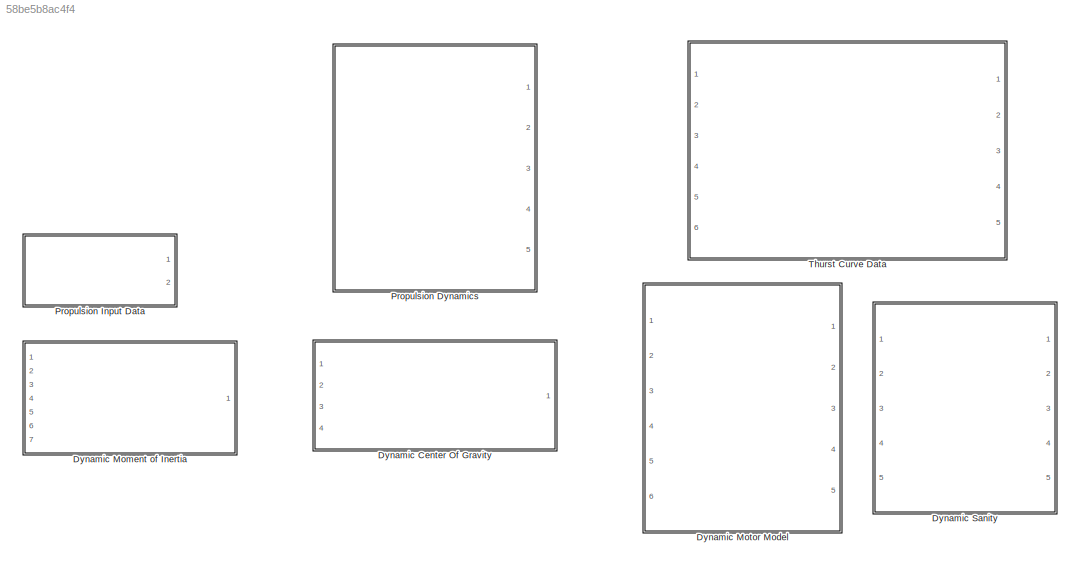
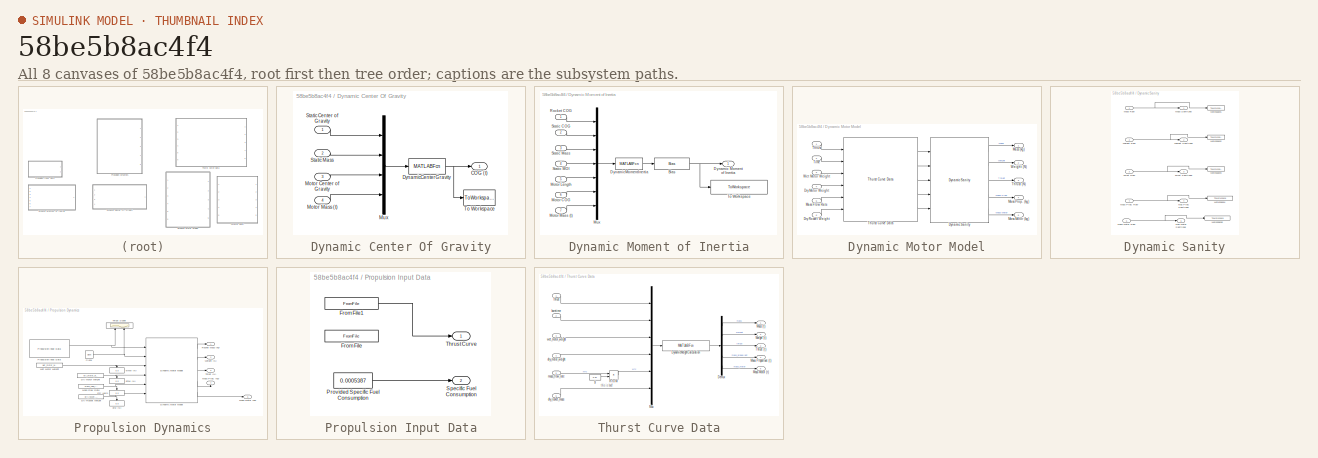
[diagram: thumbnail index - all 8 canvases of the model, root first then tree order]
MODEL slx_58be5b8ac4f4
KIND library
CONFIG AbsTol = auto
CONFIG FixedStep = auto
CONFIG MaxStep = auto
CONFIG MinStep = auto
CONFIG RelTol = 1e-3
CONFIG SampleTimeConstraint = Unconstrained
CONFIG Solver = ode45
CONFIG SolverMode = Auto
CONFIG SolverName = ode45
CONFIG StartTime = 0.0
CONFIG StopTime = 10.0
BLOCK [SubSystem] Dynamic Center Of Gravity
  Ports = [4, 1]
  RequestExecContextInheritance = off
  TreatAsAtomicUnit = on
BLOCK [Outport] Dynamic Center Of Gravity/COG (t)
  IconDisplay = Port number
BLOCK [MATLABFcn] Dynamic Center Of Gravity/DynamicCenterGravity
  MATLABFcn = DynamicCenterGravity
  Ports = [1, 1]
BLOCK [Inport] Dynamic Center Of Gravity/Motor Center of Gravity
  IconDisplay = Port number
  Port = 3
BLOCK [Inport] Dynamic Center Of Gravity/Motor Mass (t)
  IconDisplay = Port number
  Port = 4
BLOCK [Mux] Dynamic Center Of Gravity/Mux
  DisplayOption = bar
  Ports = [4, 1]
BLOCK [Inport] Dynamic Center Of Gravity/Static Center of Gravity
  IconDisplay = Port number
BLOCK [Inport] Dynamic Center Of Gravity/Static Mass
  IconDisplay = Port number
  Port = 2
BLOCK [ToWorkspace] Dynamic Center Of Gravity/To Workspace
  FixptAsFi = on
  MaxDataPoints = inf
  Ports = [1]
  SampleTime = -1
  Save2DSignal = 3-D array (concatenate along third dimension)
  VariableName = cog_rocket
BLOCK [SubSystem] Dynamic Moment of Inertia
  Ports = [7, 1]
  RequestExecContextInheritance = off
  TreatAsAtomicUnit = on
BLOCK [Bias] Dynamic Moment of Inertia/Bias
  Bias = moi_bias
  SaturateOnIntegerOverflow = off
BLOCK [Outport] Dynamic Moment of Inertia/Dynamic Moment of Inertia
  IconDisplay = Port number
BLOCK [MATLABFcn] Dynamic Moment of Inertia/DynamicMomentInertia
  MATLABFcn = DynamicMomentInertia
  Ports = [1, 1]
BLOCK [Inport] Dynamic Moment of Inertia/Motor COG
  IconDisplay = Port number
  Port = 6
BLOCK [Inport] Dynamic Moment of Inertia/Motor Length
  IconDisplay = Port number
  Port = 5
BLOCK [Inport] Dynamic Moment of Inertia/Motor Mass (t)
  IconDisplay = Port number
  Port = 7
BLOCK [Mux] Dynamic Moment of Inertia/Mux
  DisplayOption = bar
  Inputs = 7
  Ports = [7, 1]
BLOCK [Inport] Dynamic Moment of Inertia/Rocket COG
  IconDisplay = Port number
BLOCK [Inport] Dynamic Moment of Inertia/Static COG
  IconDisplay = Port number
  Port = 2
BLOCK [Inport] Dynamic Moment of Inertia/Static MOI
  IconDisplay = Port number
  Port = 4
BLOCK [Inport] Dynamic Moment of Inertia/Static Mass
  IconDisplay = Port number
  Port = 3
BLOCK [ToWorkspace] Dynamic Moment of Inertia/To Workspace
  FixptAsFi = on
  MaxDataPoints = inf
  Ports = [1]
  SampleTime = -1
  Save2DSignal = 3-D array (concatenate along third dimension)
  VariableName = rocket_moment_inertia_long
BLOCK [SubSystem] Dynamic Motor Model
  Ports = [6, 5]
  RequestExecContextInheritance = off
BLOCK [Inport] Dynamic Motor Model/Dry Motor Weight
  IconDisplay = Port number
  Port = 4
BLOCK [Inport] Dynamic Motor Model/Dry Rocket Weight
  IconDisplay = Port number
  Port = 6
BLOCK [Reference] Dynamic Motor Model/Dynamic Sanity  REF=rocket_dynamic_data_library/Dynamic Sanity  (lib defined in slx_58be5b8ac4f4)
  Ports = [5, 5]
  SourceBlock = rocket_dynamic_data_library/Dynamic Sanity
  SourceType = SubSystem
BLOCK [Outport] Dynamic Motor Model/Mass (kg)
  IconDisplay = Port number
BLOCK [Inport] Dynamic Motor Model/Mass Flow Rate
  IconDisplay = Port number
  Port = 5
BLOCK [Outport] Dynamic Motor Model/Mass Motor (kg)
  IconDisplay = Port number
  Port = 5
BLOCK [Outport] Dynamic Motor Model/Mass Prop. (kg)
  IconDisplay = Port number
  Port = 4
BLOCK [Inport] Dynamic Motor Model/Thrust
  IconDisplay = Port number
BLOCK [Outport] Dynamic Motor Model/Thrust (N)
  IconDisplay = Port number
  Port = 3
BLOCK [Reference] Dynamic Motor Model/Thurst Curve Data  REF=rocket_dynamic_data_library/Thurst Curve Data  (lib defined in slx_58be5b8ac4f4)
  Ports = [6, 5]
  SourceBlock = rocket_dynamic_data_library/Thurst Curve Data
  SourceType = SubSystem
BLOCK [Inport] Dynamic Motor Model/Time
  IconDisplay = Port number
  Port = 2
BLOCK [Outport] Dynamic Motor Model/Weight (N)
  IconDisplay = Port number
  Port = 2
BLOCK [Inport] Dynamic Motor Model/Wet Motor Weight
  IconDisplay = Port number
  Port = 3
BLOCK [SubSystem] Dynamic Sanity
  Ports = [5, 5]
  RequestExecContextInheritance = off
BLOCK [Outport] Dynamic Sanity/Mas Motor Sanitized
  IconDisplay = Port number
  Port = 5
BLOCK [Outport] Dynamic Sanity/Mas Prop. Sanitized
  IconDisplay = Port number
  Port = 4
BLOCK [Inport] Dynamic Sanity/Mass Motor Raw
  IconDisplay = Port number
  Port = 5
BLOCK [Inport] Dynamic Sanity/Mass Prop. Raw
  IconDisplay = Port number
  Port = 4
BLOCK [Inport] Dynamic Sanity/Mass Raw
  IconDisplay = Port number
BLOCK [Outport] Dynamic Sanity/Mass Sanitized
  IconDisplay = Port number
BLOCK [Inport] Dynamic Sanity/Thrust Raw
  IconDisplay = Port number
  Port = 3
BLOCK [Outport] Dynamic Sanity/Thrust Sanitized
  IconDisplay = Port number
  Port = 3
BLOCK [Inport] Dynamic Sanity/Weight Raw
  IconDisplay = Port number
  Port = 2
BLOCK [Outport] Dynamic Sanity/Weight Sanitized
  IconDisplay = Port number
  Port = 2
BLOCK [ToWorkspace] Dynamic Sanity/Workspace1
  FixptAsFi = on
  MaxDataPoints = inf
  Ports = [1]
  SampleTime = -1
  Save2DSignal = 3-D array (concatenate along third dimension)
  VariableName = mass
BLOCK [ToWorkspace] Dynamic Sanity/Workspace2
  FixptAsFi = on
  MaxDataPoints = inf
  Ports = [1]
  SampleTime = -1
  Save2DSignal = 3-D array (concatenate along third dimension)
  VariableName = weight
BLOCK [ToWorkspace] Dynamic Sanity/Workspace3
  FixptAsFi = on
  MaxDataPoints = inf
  Ports = [1]
  SampleTime = -1
  Save2DSignal = 3-D array (concatenate along third dimension)
  VariableName = thrust
BLOCK [ToWorkspace] Dynamic Sanity/Workspace4
  FixptAsFi = on
  MaxDataPoints = inf
  Ports = [1]
  SampleTime = -1
  Save2DSignal = 3-D array (concatenate along third dimension)
  VariableName = mass_propellant
BLOCK [ToWorkspace] Dynamic Sanity/Workspace5
  FixptAsFi = on
  MaxDataPoints = inf
  Ports = [1]
  SampleTime = -1
  Save2DSignal = 3-D array (concatenate along third dimension)
  VariableName = mass_motor
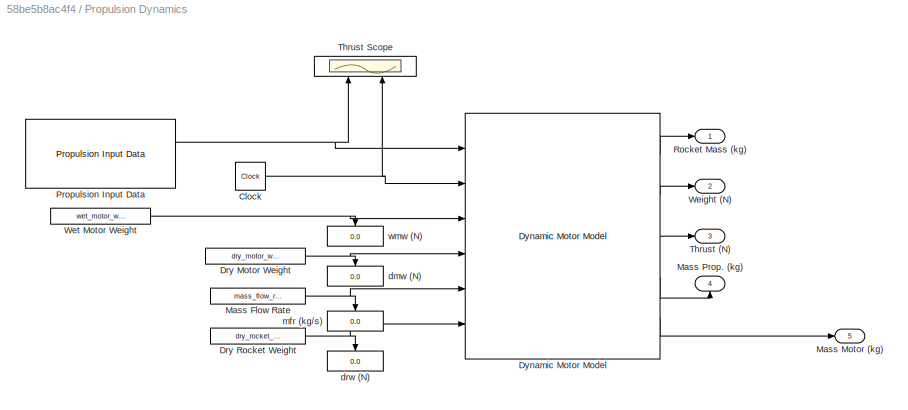
BLOCK [SubSystem] Propulsion Dynamics
  Ports = [0, 5]
  RequestExecContextInheritance = off
BLOCK [Clock] Propulsion Dynamics/Clock
  DisplayTime = on
BLOCK [Constant] Propulsion Dynamics/Dry Motor Weight
  Value = dry_motor_weight
BLOCK [Constant] Propulsion Dynamics/Dry Rocket Weight
  Value = dry_rocket_weight
BLOCK [Reference] Propulsion Dynamics/Dynamic Motor Model  REF=rocket_dynamic_data_library/Dynamic Motor Model  (lib defined in slx_58be5b8ac4f4)
  Ports = [6, 5]
  SourceBlock = rocket_dynamic_data_library/Dynamic Motor Model
  SourceType = SubSystem
BLOCK [Constant] Propulsion Dynamics/Mass Flow Rate
  Value = mass_flow_rate
BLOCK [Outport] Propulsion Dynamics/Mass Motor (kg)
  IconDisplay = Port number
  Port = 5
BLOCK [Outport] Propulsion Dynamics/Mass Prop. (kg)
  IconDisplay = Port number
  Port = 4
BLOCK [Reference] Propulsion Dynamics/Propulsion Input Data  REF=rocket_dynamic_data_library/Propulsion Input Data  (lib defined in slx_58be5b8ac4f4)
  Ports = [0, 2]
  SourceBlock = rocket_dynamic_data_library/Propulsion Input Data
  SourceType = SubSystem
BLOCK [Outport] Propulsion Dynamics/Rocket Mass (kg)
  IconDisplay = Port number
BLOCK [Outport] Propulsion Dynamics/Thrust (N)
  IconDisplay = Port number
  Port = 3
BLOCK [Scope] Propulsion Dynamics/Thrust Scope
  DataFormat = StructureWithTime
  Floating = off
  NumInputPorts = 2
  Ports = [2]
  SampleTime = 0
  SaveName = ScopeData2
  ShowLegends = off
  YMax = 139.531~1368.8
  YMin = 126.243~1238.44
BLOCK [Outport] Propulsion Dynamics/Weight (N)
  IconDisplay = Port number
  Port = 2
BLOCK [Constant] Propulsion Dynamics/Wet Motor Weight 
  Value = wet_motor_weight
BLOCK [Display] Propulsion Dynamics/dmw (N)
  Decimation = 1
  Ports = [1]
BLOCK [Display] Propulsion Dynamics/drw (N)
  Decimation = 1
  Ports = [1]
BLOCK [Display] Propulsion Dynamics/mfr (kg//s)
  Decimation = 1
  Ports = [1]
BLOCK [Display] Propulsion Dynamics/wmw (N)
  Decimation = 1
  Ports = [1]
BLOCK [SubSystem] Propulsion Input Data
  Ports = [0, 2]
  RequestExecContextInheritance = off
BLOCK [FromFile] Propulsion Input Data/From File
  ExtrapolationAfterLastDataPoint = Ground value
  FileName = thrust_73.mat
  OutDataTypeStr = double
BLOCK [FromFile] Propulsion Input Data/From File1
  ExtrapolationAfterLastDataPoint = Ground value
  FileName = thrust_curve_mclass.mat
  OutDataTypeStr = double
BLOCK [Constant] Propulsion Input Data/Provided Specific Fuel Consumption
  Value = 0.0005387
BLOCK [Outport] Propulsion Input Data/Specific Fuel Consumption
  IconDisplay = Port number
  Port = 2
BLOCK [Outport] Propulsion Input Data/Thrust Curve
  IconDisplay = Port number
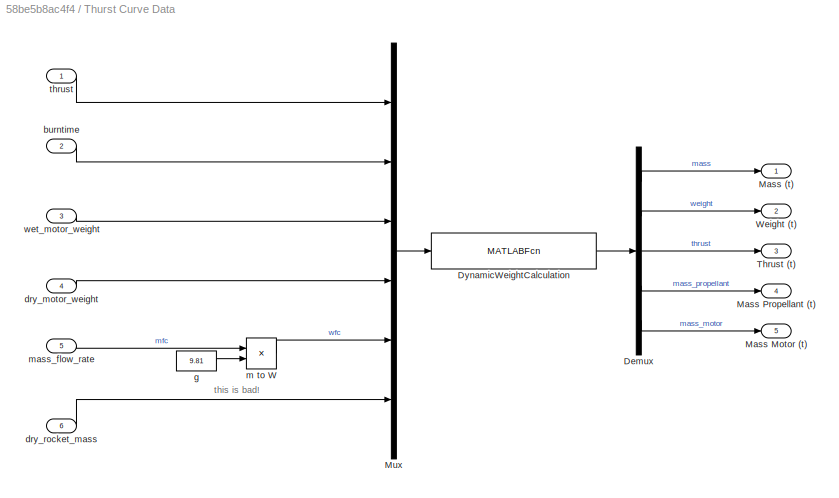
BLOCK [SubSystem] Thurst Curve Data
  Ports = [6, 5]
  RequestExecContextInheritance = off
BLOCK [Demux] Thurst Curve Data/Demux
  DisplayOption = bar
  Outputs = [1 1 1 1 1]
  Ports = [1, 5]
BLOCK [MATLABFcn] Thurst Curve Data/DynamicWeightCalculation
  MATLABFcn = DynamicWeightCalculation
  Ports = [1, 1]
BLOCK [Outport] Thurst Curve Data/Mass (t)
  IconDisplay = Port number
BLOCK [Outport] Thurst Curve Data/Mass Motor (t)
  IconDisplay = Port number
  Port = 5
BLOCK [Outport] Thurst Curve Data/Mass Propellant (t)
  IconDisplay = Port number
  Port = 4
BLOCK [Mux] Thurst Curve Data/Mux
  DisplayOption = bar
  Inputs = 6
  Ports = [6, 1]
BLOCK [Outport] Thurst Curve Data/Thrust (t) 
  IconDisplay = Port number
  Port = 3
BLOCK [Outport] Thurst Curve Data/Weight (t)
  IconDisplay = Port number
  Port = 2
BLOCK [Inport] Thurst Curve Data/burntime
  IconDisplay = Port number
  Port = 2
BLOCK [Inport] Thurst Curve Data/dry_motor_weight
  IconDisplay = Port number
  Port = 4
BLOCK [Inport] Thurst Curve Data/dry_rocket_mass
  IconDisplay = Port number
  Port = 6
BLOCK [Constant] Thurst Curve Data/g
  Value = 9.81
BLOCK [Product] Thurst Curve Data/m to W
  InputSameDT = off
  OutDataTypeStr = Inherit: Inherit via internal rule
  Ports = [2, 1]
  RndMeth = Floor
  SaturateOnIntegerOverflow = off
BLOCK [Inport] Thurst Curve Data/mass_flow_rate
  IconDisplay = Port number
  Port = 5
BLOCK [Inport] Thurst Curve Data/thrust
  IconDisplay = Port number
BLOCK [Inport] Thurst Curve Data/wet_motor_weight
  IconDisplay = Port number
  Port = 3
ANNOTATION Thurst Curve Data: this is bad!
NET Dynamic Center Of Gravity/DynamicCenterGravity:1 -> Dynamic Center Of Gravity/COG (t):1, Dynamic Center Of Gravity/To Workspace:1
LINE Dynamic Center Of Gravity/Motor Center of Gravity:1 -> Dynamic Center Of Gravity/Mux:3
LINE Dynamic Center Of Gravity/Motor Mass (t):1 -> Dynamic Center Of Gravity/Mux:4
LINE Dynamic Center Of Gravity/Mux:1 -> Dynamic Center Of Gravity/DynamicCenterGravity:1
LINE Dynamic Center Of Gravity/Static Center of Gravity:1 -> Dynamic Center Of Gravity/Mux:1
LINE Dynamic Center Of Gravity/Static Mass:1 -> Dynamic Center Of Gravity/Mux:2
NET Dynamic Moment of Inertia/Bias:1 -> Dynamic Moment of Inertia/Dynamic Moment of Inertia:1, Dynamic Moment of Inertia/To Workspace:1
LINE Dynamic Moment of Inertia/DynamicMomentInertia:1 -> Dynamic Moment of Inertia/Bias:1
LINE Dynamic Moment of Inertia/Motor COG:1 -> Dynamic Moment of Inertia/Mux:6
LINE Dynamic Moment of Inertia/Motor Length:1 -> Dynamic Moment of Inertia/Mux:5
LINE Dynamic Moment of Inertia/Motor Mass (t):1 -> Dynamic Moment of Inertia/Mux:7
LINE Dynamic Moment of Inertia/Mux:1 -> Dynamic Moment of Inertia/DynamicMomentInertia:1
LINE Dynamic Moment of Inertia/Rocket COG:1 -> Dynamic Moment of Inertia/Mux:1
LINE Dynamic Moment of Inertia/Static COG:1 -> Dynamic Moment of Inertia/Mux:2
LINE Dynamic Moment of Inertia/Static MOI:1 -> Dynamic Moment of Inertia/Mux:4
LINE Dynamic Moment of Inertia/Static Mass:1 -> Dynamic Moment of Inertia/Mux:3
LINE Dynamic Motor Model/Dry Motor Weight:1 -> Dynamic Motor Model/Thurst Curve Data:4
LINE Dynamic Motor Model/Dry Rocket Weight:1 -> Dynamic Motor Model/Thurst Curve Data:6
LINE Dynamic Motor Model/Dynamic Sanity:1 -> Dynamic Motor Model/Mass (kg):1
LINE Dynamic Motor Model/Dynamic Sanity:2 -> Dynamic Motor Model/Weight (N):1
LINE Dynamic Motor Model/Dynamic Sanity:3 -> Dynamic Motor Model/Thrust (N):1
LINE Dynamic Motor Model/Dynamic Sanity:4 -> Dynamic Motor Model/Mass Prop. (kg):1
LINE Dynamic Motor Model/Dynamic Sanity:5 -> Dynamic Motor Model/Mass Motor (kg):1
LINE Dynamic Motor Model/Mass Flow Rate:1 -> Dynamic Motor Model/Thurst Curve Data:5
LINE Dynamic Motor Model/Thrust:1 -> Dynamic Motor Model/Thurst Curve Data:1
LINE Dynamic Motor Model/Thurst Curve Data:1 -> Dynamic Motor Model/Dynamic Sanity:1
LINE Dynamic Motor Model/Thurst Curve Data:2 -> Dynamic Motor Model/Dynamic Sanity:2
LINE Dynamic Motor Model/Thurst Curve Data:3 -> Dynamic Motor Model/Dynamic Sanity:3
LINE Dynamic Motor Model/Thurst Curve Data:4 -> Dynamic Motor Model/Dynamic Sanity:4
LINE Dynamic Motor Model/Thurst Curve Data:5 -> Dynamic Motor Model/Dynamic Sanity:5
LINE Dynamic Motor Model/Time:1 -> Dynamic Motor Model/Thurst Curve Data:2
LINE Dynamic Motor Model/Wet Motor Weight:1 -> Dynamic Motor Model/Thurst Curve Data:3
NET Dynamic Sanity/Mass Motor Raw:1 -> Dynamic Sanity/Mas Motor Sanitized:1, Dynamic Sanity/Workspace5:1
NET Dynamic Sanity/Mass Prop. Raw:1 -> Dynamic Sanity/Mas Prop. Sanitized:1, Dynamic Sanity/Workspace4:1
NET Dynamic Sanity/Mass Raw:1 -> Dynamic Sanity/Mass Sanitized:1, Dynamic Sanity/Workspace1:1
NET Dynamic Sanity/Thrust Raw:1 -> Dynamic Sanity/Thrust Sanitized:1, Dynamic Sanity/Workspace3:1
NET Dynamic Sanity/Weight Raw:1 -> Dynamic Sanity/Weight Sanitized:1, Dynamic Sanity/Workspace2:1
NET Propulsion Dynamics/Clock:1 -> Propulsion Dynamics/Dynamic Motor Model:2, Propulsion Dynamics/Thrust Scope:2
NET Propulsion Dynamics/Dry Motor Weight:1 -> Propulsion Dynamics/Dynamic Motor Model:4, Propulsion Dynamics/dmw (N):1
NET Propulsion Dynamics/Dry Rocket Weight:1 -> Propulsion Dynamics/Dynamic Motor Model:6, Propulsion Dynamics/drw (N):1
LINE Propulsion Dynamics/Dynamic Motor Model:1 -> Propulsion Dynamics/Rocket Mass (kg):1
LINE Propulsion Dynamics/Dynamic Motor Model:2 -> Propulsion Dynamics/Weight (N):1
LINE Propulsion Dynamics/Dynamic Motor Model:3 -> Propulsion Dynamics/Thrust (N):1
LINE Propulsion Dynamics/Dynamic Motor Model:4 -> Propulsion Dynamics/Mass Prop. (kg):1
LINE Propulsion Dynamics/Dynamic Motor Model:5 -> Propulsion Dynamics/Mass Motor (kg):1
NET Propulsion Dynamics/Mass Flow Rate:1 -> Propulsion Dynamics/Dynamic Motor Model:5, Propulsion Dynamics/mfr (kg//s):1
NET Propulsion Dynamics/Propulsion Input Data:1 -> Propulsion Dynamics/Dynamic Motor Model:1, Propulsion Dynamics/Thrust Scope:1
NET Propulsion Dynamics/Wet Motor Weight :1 -> Propulsion Dynamics/Dynamic Motor Model:3, Propulsion Dynamics/wmw (N):1
LINE Propulsion Input Data/From File1:1 -> Propulsion Input Data/Thrust Curve:1
LINE Propulsion Input Data/Provided Specific Fuel Consumption:1 -> Propulsion Input Data/Specific Fuel Consumption:1
LINE Thurst Curve Data/Demux:1 -> Thurst Curve Data/Mass (t):1
LINE Thurst Curve Data/Demux:2 -> Thurst Curve Data/Weight (t):1
LINE Thurst Curve Data/Demux:3 -> Thurst Curve Data/Thrust (t) :1
LINE Thurst Curve Data/Demux:4 -> Thurst Curve Data/Mass Propellant (t):1
LINE Thurst Curve Data/Demux:5 -> Thurst Curve Data/Mass Motor (t):1
LINE Thurst Curve Data/DynamicWeightCalculation:1 -> Thurst Curve Data/Demux:1
LINE Thurst Curve Data/Mux:1 -> Thurst Curve Data/DynamicWeightCalculation:1
LINE Thurst Curve Data/burntime:1 -> Thurst Curve Data/Mux:2
LINE Thurst Curve Data/dry_motor_weight:1 -> Thurst Curve Data/Mux:4
LINE Thurst Curve Data/dry_rocket_mass:1 -> Thurst Curve Data/Mux:6
LINE Thurst Curve Data/g:1 -> Thurst Curve Data/m to W:2
LINE Thurst Curve Data/m to W:1 -> Thurst Curve Data/Mux:5
LINE Thurst Curve Data/mass_flow_rate:1 -> Thurst Curve Data/m to W:1
LINE Thurst Curve Data/thrust:1 -> Thurst Curve Data/Mux:1
LINE Thurst Curve Data/wet_motor_weight:1 -> Thurst Curve Data/Mux:3
note: NET lines group one-source signal fan-out (src -> all destinations, sorted); 1:1 wires keep LINE
